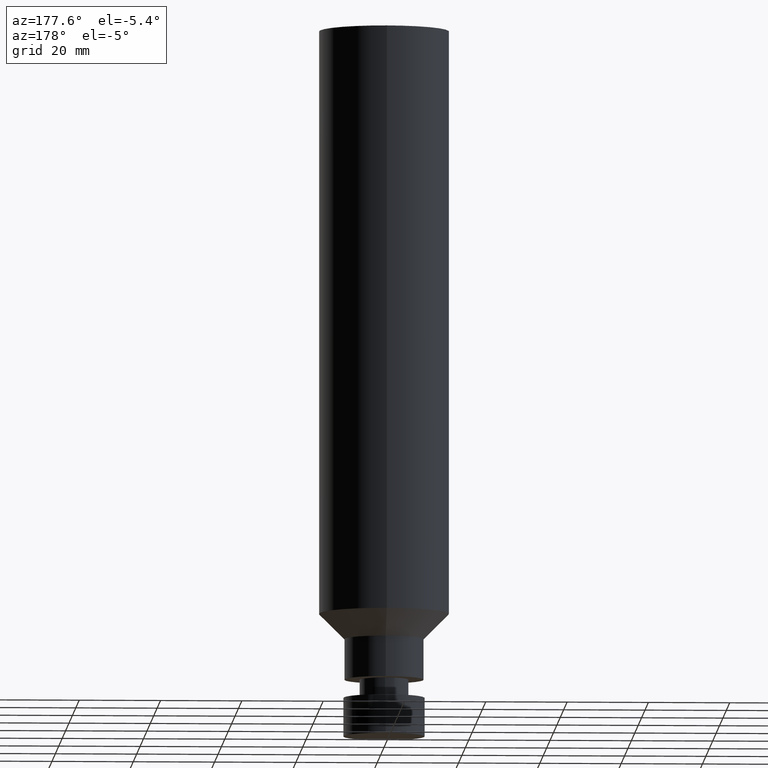
[diagram: clean part render]
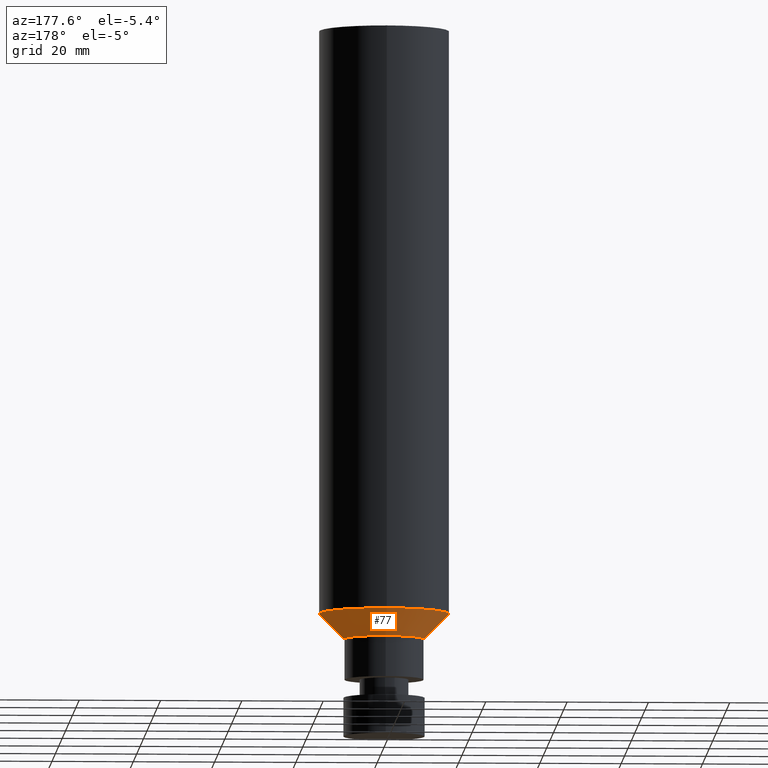
[diagram: same view with one face highlighted and labeled with its STEP entity id]
A machine part, auxiliary view. The second image highlights one B-rep face of the part: STEP entity #77.
In plain terms, the highlighted conical surface has half-angle 45 deg.
Its self-contained STEP definition (entity closure, byte-faithful):
#77=ADVANCED_FACE('',(#90,#91),#92,.T.);
#90=FACE_BOUND('',#115,.T.);
#91=FACE_BOUND('',#116,.T.);
#92=CONICAL_SURFACE('',#117,12.875,0.785398163397448);
#115=EDGE_LOOP('',(#144));
#116=EDGE_LOOP('',(#145));
#117=AXIS2_PLACEMENT_3D('',#146,#147,#148);
#144=ORIENTED_EDGE('',*,*,#180,.F.);
#145=ORIENTED_EDGE('',*,*,#179,.T.);
#146=CARTESIAN_POINT('',(-1.6609272213436E-015,-3.32185444268719E-015,27.125));
#147=DIRECTION('',(-6.12323399573677E-017,-1.22464679914735E-016,1.0));
#148=DIRECTION('',(-1.23259516440783E-032,1.0,1.22464679914735E-016));
#179=EDGE_CURVE('',#188,#188,#189,.T.);
#180=EDGE_CURVE('',#190,#190,#191,.T.);
#188=VERTEX_POINT('',#204);
#189=CIRCLE('',#205,16.0);
#190=VERTEX_POINT('',#206);
#191=CIRCLE('',#207,9.75);
#204=CARTESIAN_POINT('',(-1.85227828371037E-015,16.0,30.25));
#205=AXIS2_PLACEMENT_3D('',#221,#222,#223);
#206=CARTESIAN_POINT('',(-1.46957615897682E-015,9.75,24.0));
#207=AXIS2_PLACEMENT_3D('',#224,#225,#226);
#221=CARTESIAN_POINT('',(-1.85227828371037E-015,-3.70455656742074E-015,30.25));
#222=DIRECTION('',(6.12323399573677E-017,1.22464679914735E-016,-1.0));
#223=DIRECTION('',(-1.23259516440783E-032,1.0,1.22464679914735E-016));
#224=CARTESIAN_POINT('',(-1.46957615897682E-015,-2.93915231795365E-015,24.0));
#225=DIRECTION('',(6.12323399573677E-017,1.22464679914735E-016,-1.0));
#226=DIRECTION('',(-1.23259516440783E-032,1.0,1.22464679914735E-016));